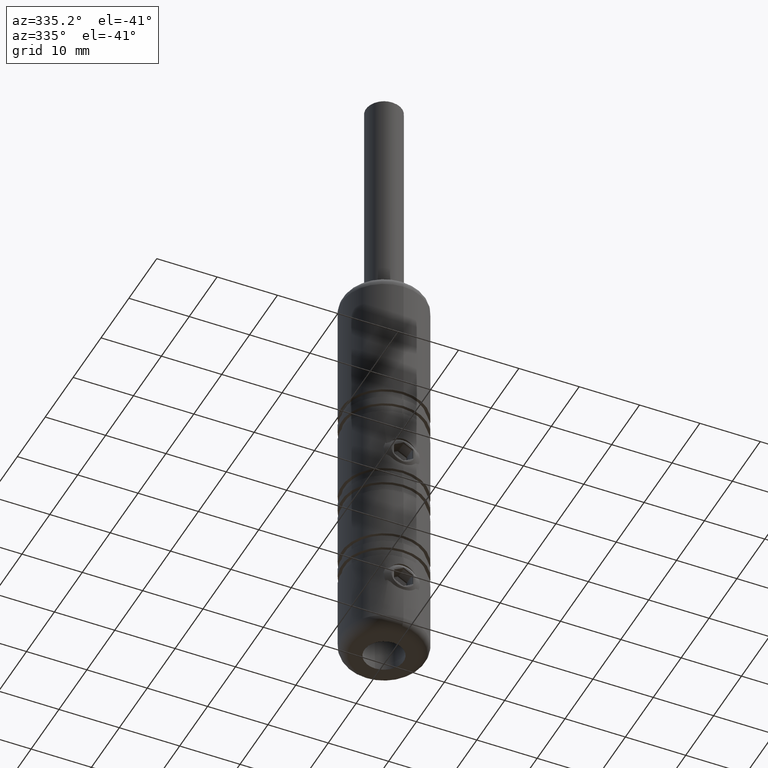
[diagram: clean part render]
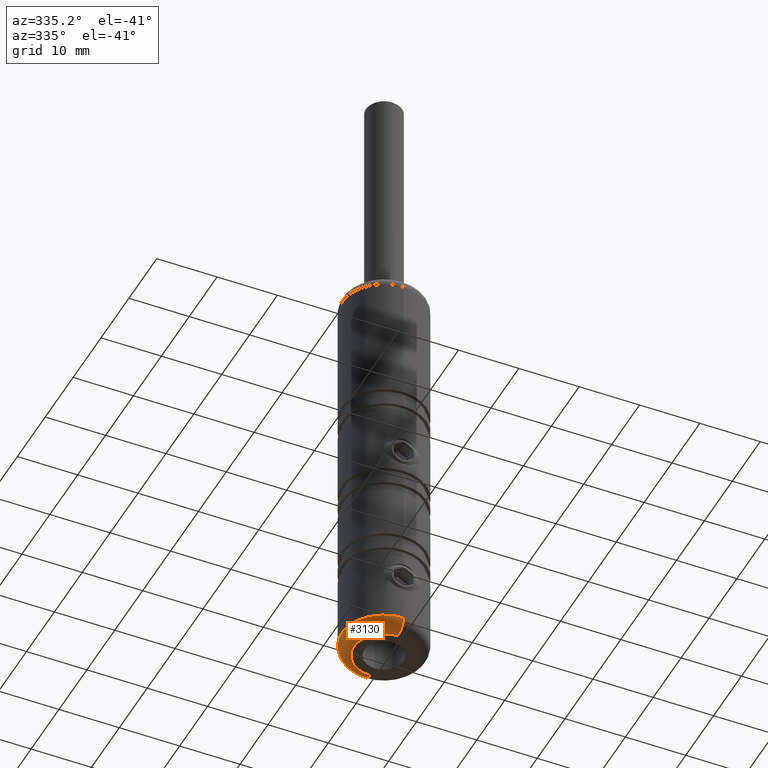
[diagram: same view with one face highlighted and labeled with its STEP entity id]
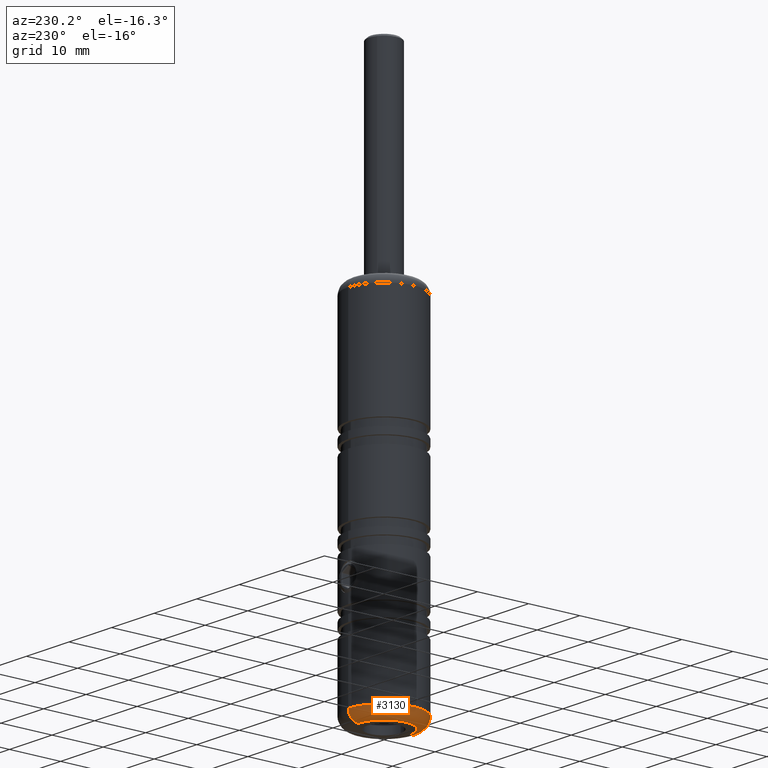
[diagram: same view with one face highlighted and labeled with its STEP entity id]
A machine part, auxiliary view. The second image highlights one B-rep face of the part: STEP entity #3130.
A second angle (auxiliary view) of the same face is appended — the face is thin or edge-on in the first view.
In plain terms, the highlighted toroidal blend (fillet) surface has major radius 5 mm and minor (blend) radius 2 mm.
Its self-contained STEP definition (entity closure, byte-faithful):
#1014 = CARTESIAN_POINT ( 'NONE',  ( 7.347880794884109900E-016, 4.999999999999987600, -35.00000000000000000 ) ) ;
#1238 = ORIENTED_EDGE ( 'NONE', *, *, #5341, .F. ) ;
#1419 = AXIS2_PLACEMENT_3D ( 'NONE', #4841, #13947, #15371 ) ;
#2086 = CIRCLE ( 'NONE', #1419, 6.999999999999992000 ) ;
#2332 = EDGE_CURVE ( 'NONE', #11993, #7819, #10376, .T. ) ;
#3130 = ADVANCED_FACE ( 'NONE', ( #9951 ), #8714, .T. ) ;
#4483 = CARTESIAN_POINT ( 'NONE',  ( 6.123233995736756400E-016, 4.999999999999987600, -33.00000000000000000 ) ) ;
#4841 = CARTESIAN_POINT ( 'NONE',  ( 0.0000000000000000000, -4.071217018603719000E-015, -33.00000000000000000 ) ) ;
#4950 = ORIENTED_EDGE ( 'NONE', *, *, #2332, .F. ) ;
#5266 = CARTESIAN_POINT ( 'NONE',  ( 0.0000000000000000000, -4.999999999999996400, -33.00000000000000000 ) ) ;
#5341 = EDGE_CURVE ( 'NONE', #10415, #7838, #2086, .T. ) ;
#5586 = DIRECTION ( 'NONE',  ( 0.0000000000000000000, -5.987083850887820200E-017, -1.000000000000000000 ) ) ;
#6904 = AXIS2_PLACEMENT_3D ( 'NONE', #4483, #7110, #16213 ) ;
#7110 = DIRECTION ( 'NONE',  ( 1.000000000000000000, -1.224646799147353200E-016, 7.332063074216577800E-033 ) ) ;
#7819 = VERTEX_POINT ( 'NONE', #1014 ) ;
#7838 = VERTEX_POINT ( 'NONE', #13746 ) ;
#8714 = TOROIDAL_SURFACE ( 'NONE', #12968, 4.999999999999992000, 2.000000000000000000 ) ;
#8772 = CARTESIAN_POINT ( 'NONE',  ( 0.0000000000000000000, -4.071217018603719000E-015, -33.00000000000000000 ) ) ;
#8837 = CARTESIAN_POINT ( 'NONE',  ( 0.0000000000000000000, -4.999999999999996400, -35.00000000000000000 ) ) ;
#9731 = EDGE_LOOP ( 'NONE', ( #13110, #4950, #9815, #1238 ) ) ;
#9815 = ORIENTED_EDGE ( 'NONE', *, *, #11068, .T. ) ;
#9951 = FACE_OUTER_BOUND ( 'NONE', #9731, .T. ) ;
#10110 = CARTESIAN_POINT ( 'NONE',  ( 8.572527594031463300E-016, 6.999999999999987600, -33.00000000000000000 ) ) ;
#10376 = CIRCLE ( 'NONE', #16191, 4.999999999999992000 ) ;
#10415 = VERTEX_POINT ( 'NONE', #10110 ) ;
#10817 = DIRECTION ( 'NONE',  ( 0.0000000000000000000, -1.000000000000000000, 0.0000000000000000000 ) ) ;
#11068 = EDGE_CURVE ( 'NONE', #11993, #7838, #15952, .T. ) ;
#11351 = DIRECTION ( 'NONE',  ( 0.0000000000000000000, -1.000000000000000000, 5.987083850887820200E-017 ) ) ;
#11366 = AXIS2_PLACEMENT_3D ( 'NONE', #5266, #11873, #14362 ) ;
#11873 = DIRECTION ( 'NONE',  ( -1.000000000000000000, -0.0000000000000000000, 0.0000000000000000000 ) ) ;
#11993 = VERTEX_POINT ( 'NONE', #8837 ) ;
#12421 = CIRCLE ( 'NONE', #6904, 2.000000000000000000 ) ;
#12968 = AXIS2_PLACEMENT_3D ( 'NONE', #8772, #13845, #11351 ) ;
#13110 = ORIENTED_EDGE ( 'NONE', *, *, #14979, .F. ) ;
#13746 = CARTESIAN_POINT ( 'NONE',  ( 0.0000000000000000000, -6.999999999999996400, -33.00000000000000000 ) ) ;
#13845 = DIRECTION ( 'NONE',  ( -0.0000000000000000000, 5.987083850887820200E-017, 1.000000000000000000 ) ) ;
#13947 = DIRECTION ( 'NONE',  ( -0.0000000000000000000, 5.987083850887820200E-017, 1.000000000000000000 ) ) ;
#14362 = DIRECTION ( 'NONE',  ( 0.0000000000000000000, 0.0000000000000000000, 1.000000000000000000 ) ) ;
#14979 = EDGE_CURVE ( 'NONE', #7819, #10415, #12421, .T. ) ;
#15371 = DIRECTION ( 'NONE',  ( 0.0000000000000000000, -1.000000000000000000, 0.0000000000000000000 ) ) ;
#15942 = CARTESIAN_POINT ( 'NONE',  ( 0.0000000000000000000, -4.190958695621474900E-015, -35.00000000000000000 ) ) ;
#15952 = CIRCLE ( 'NONE', #11366, 2.000000000000001800 ) ;
#16191 = AXIS2_PLACEMENT_3D ( 'NONE', #15942, #5586, #10817 ) ;
#16213 = DIRECTION ( 'NONE',  ( 1.224646799147353500E-016, 1.000000000000000000, 0.0000000000000000000 ) ) ;